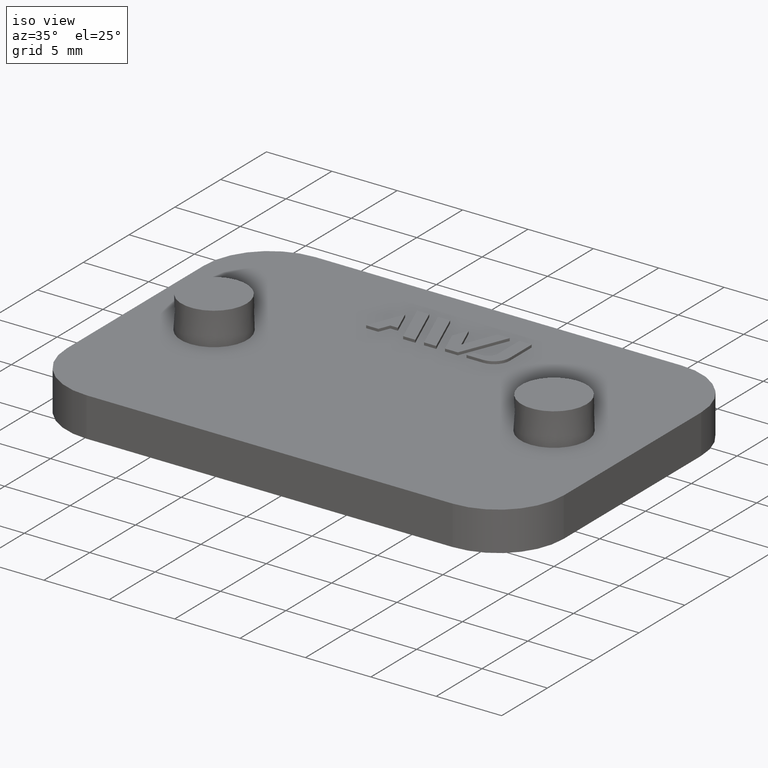
[diagram: clean part render]
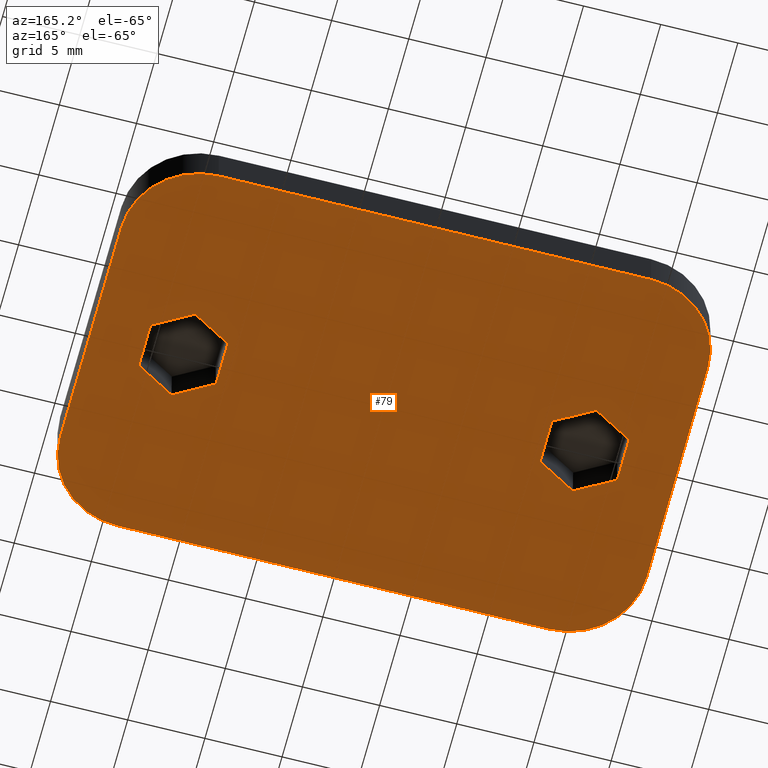
[diagram: tour spotlight — one face highlighted and labeled with its STEP entity id]
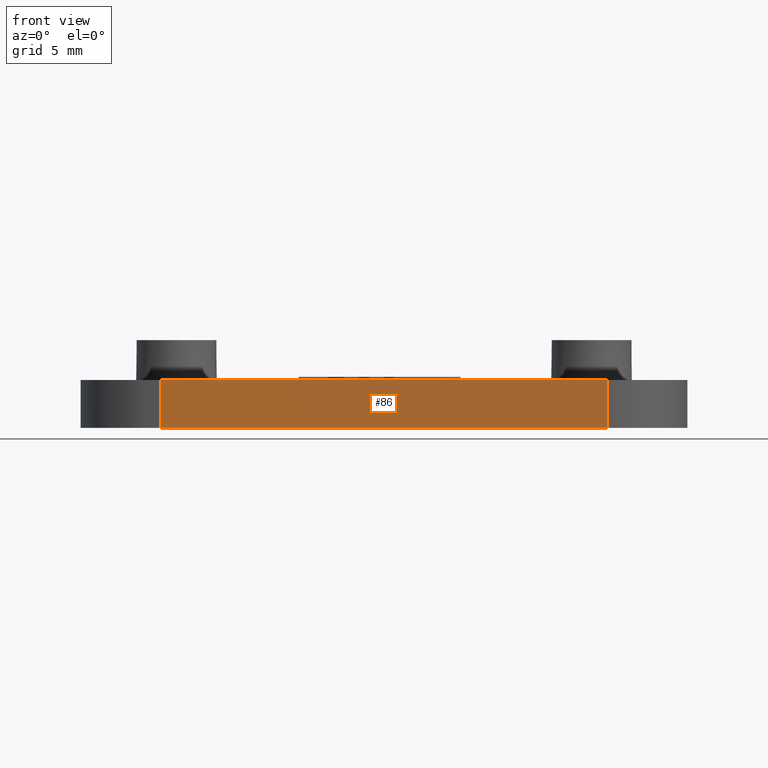
[diagram: tour spotlight — one face highlighted and labeled with its STEP entity id]
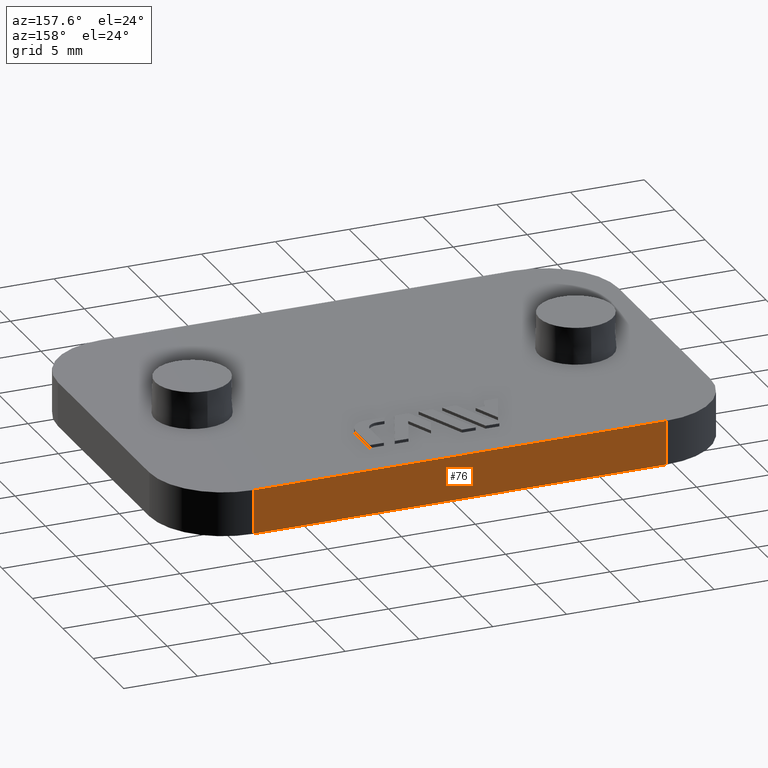
[diagram: tour spotlight — one face highlighted and labeled with its STEP entity id]
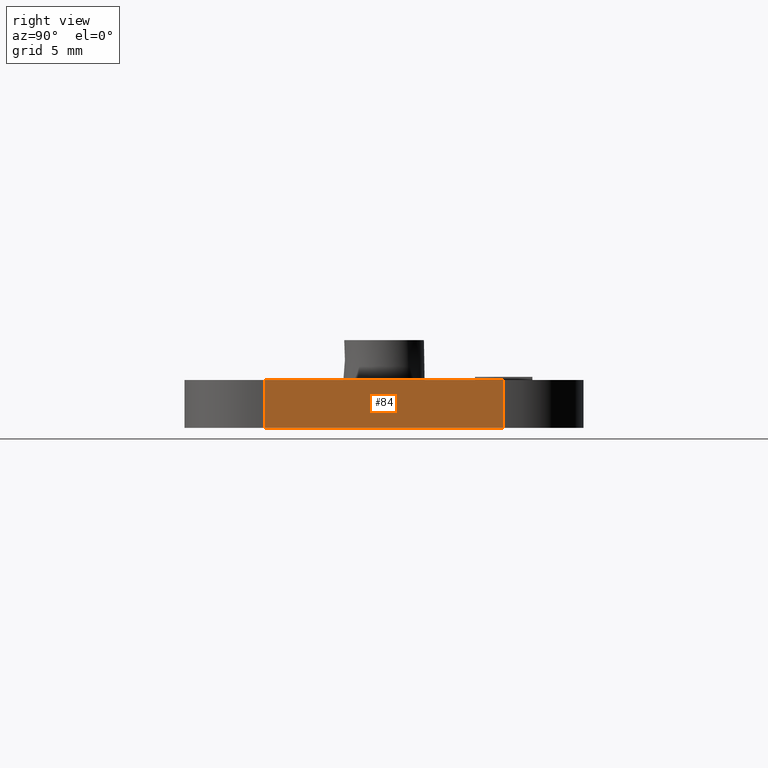
[diagram: tour spotlight — one face highlighted and labeled with its STEP entity id]
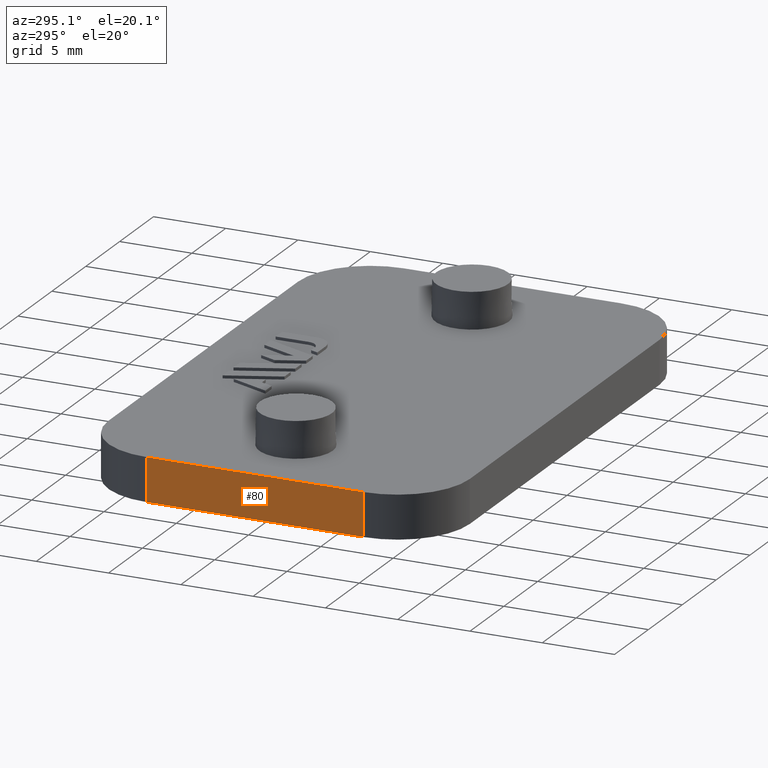
[diagram: tour spotlight — one face highlighted and labeled with its STEP entity id]
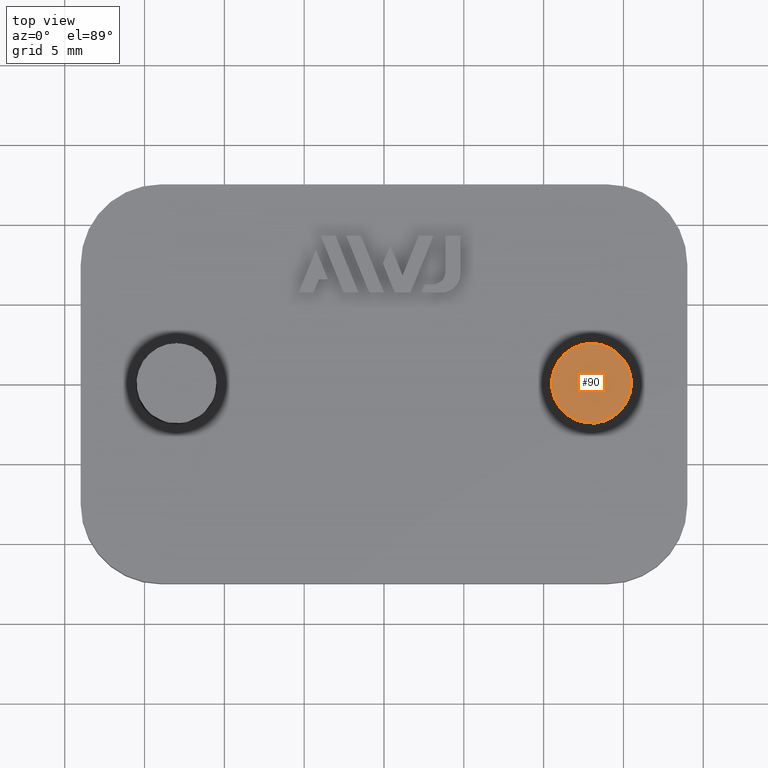
[diagram: tour spotlight — one face highlighted and labeled with its STEP entity id]
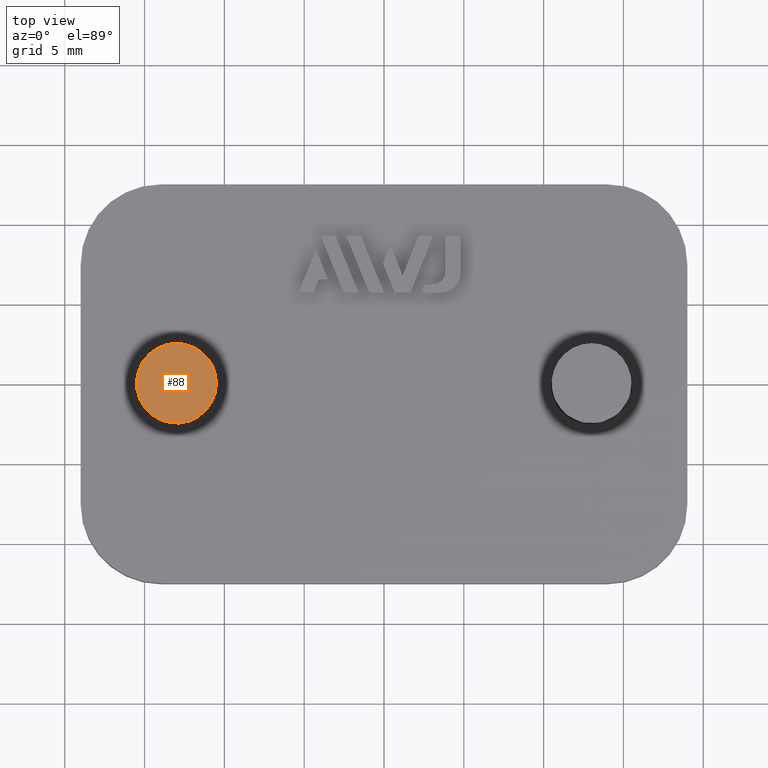
[diagram: tour spotlight — one face highlighted and labeled with its STEP entity id]
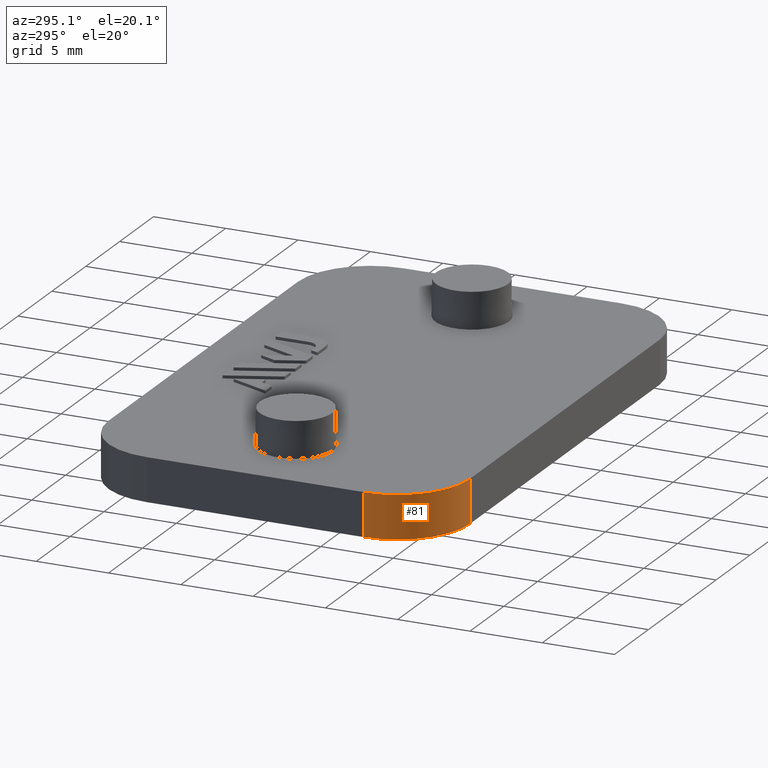
[diagram: tour spotlight — one face highlighted and labeled with its STEP entity id]
A machine part: a face-by-face anatomy tour. The part has 61 B-rep faces; the first image is the clean iso view, then the 8 largest visible faces are spotlighted one at a time (largest first), each with its STEP entity span.

Face 1 — auxiliary view, entity #79. In plain terms, the highlighted planar face has unit normal (0, -0, -1).
Definition (entity closure, byte-faithful):
#79 = ADVANCED_FACE( '', ( #152, #153, #154 ), #155, .T. );
#152 = FACE_BOUND( '', #285, .T. );
#153 = FACE_BOUND( '', #286, .T. );
#154 = FACE_OUTER_BOUND( '', #287, .T. );
#155 = PLANE( '', #288 );
#285 = EDGE_LOOP( '', ( #465, #466, #467, #468, #469, #470 ) );
#286 = EDGE_LOOP( '', ( #471, #472, #473, #474, #475, #476 ) );
#287 = EDGE_LOOP( '', ( #477, #478, #479, #480, #481, #482, #483, #484 ) );
#288 = AXIS2_PLACEMENT_3D( '', #485, #486, #487 );
#465 = ORIENTED_EDGE( '', *, *, #928, .T. );
#466 = ORIENTED_EDGE( '', *, *, #929, .T. );
#467 = ORIENTED_EDGE( '', *, *, #930, .T. );
#468 = ORIENTED_EDGE( '', *, *, #931, .T. );
#469 = ORIENTED_EDGE( '', *, *, #932, .T. );
#470 = ORIENTED_EDGE( '', *, *, #933, .T. );
#471 = ORIENTED_EDGE( '', *, *, #934, .T. );
#472 = ORIENTED_EDGE( '', *, *, #935, .T. );
#473 = ORIENTED_EDGE( '', *, *, #936, .T. );
#474 = ORIENTED_EDGE( '', *, *, #937, .T. );
#475 = ORIENTED_EDGE( '', *, *, #938, .T. );
#476 = ORIENTED_EDGE( '', *, *, #939, .T. );
#477 = ORIENTED_EDGE( '', *, *, #921, .T. );
#478 = ORIENTED_EDGE( '', *, *, #940, .T. );
#479 = ORIENTED_EDGE( '', *, *, #941, .T. );
#480 = ORIENTED_EDGE( '', *, *, #942, .T. );
#481 = ORIENTED_EDGE( '', *, *, #943, .T. );
#482 = ORIENTED_EDGE( '', *, *, #944, .T. );
#483 = ORIENTED_EDGE( '', *, *, #945, .T. );
#484 = ORIENTED_EDGE( '', *, *, #946, .T. );
#485 = CARTESIAN_POINT( '', ( 30.5000000000000, -8.49741356322415E-031, -1.38777878078145E-014 ) );
#486 = DIRECTION( '', ( 0.000000000000000, -6.12303176911189E-017, -1.00000000000000 ) );
#487 = DIRECTION( '', ( 0.000000000000000, 1.00000000000000, -6.12303176911189E-017 ) );
#921 = EDGE_CURVE( '', #1108, #1106, #1109, .T. );
#928 = EDGE_CURVE( '', #1119, #1120, #1121, .F. );
#929 = EDGE_CURVE( '', #1120, #1122, #1123, .F. );
#930 = EDGE_CURVE( '', #1122, #1124, #1125, .F. );
#931 = EDGE_CURVE( '', #1124, #1126, #1127, .F. );
#932 = EDGE_CURVE( '', #1126, #1128, #1129, .F. );
#933 = EDGE_CURVE( '', #1128, #1119, #1130, .F. );
#934 = EDGE_CURVE( '', #1131, #1132, #1133, .F. );
#935 = EDGE_CURVE( '', #1132, #1134, #1135, .F. );
#936 = EDGE_CURVE( '', #1134, #1136, #1137, .F. );
#937 = EDGE_CURVE( '', #1136, #1138, #1139, .F. );
#938 = EDGE_CURVE( '', #1138, #1140, #1141, .F. );
#939 = EDGE_CURVE( '', #1140, #1131, #1142, .F. );
#940 = EDGE_CURVE( '', #1106, #1143, #1144, .T. );
#941 = EDGE_CURVE( '', #1143, #1145, #1146, .T. );
#942 = EDGE_CURVE( '', #1145, #1147, #1148, .T. );
#943 = EDGE_CURVE( '', #1147, #1149, #1150, .T. );
#944 = EDGE_CURVE( '', #1149, #1151, #1152, .T. );
#945 = EDGE_CURVE( '', #1151, #1153, #1154, .T. );
#946 = EDGE_CURVE( '', #1153, #1108, #1155, .T. );
#1106 = VERTEX_POINT( '', #1384 );
#1108 = VERTEX_POINT( '', #1387 );
#1109 = LINE( '', #1388, #1389 );
#1119 = VERTEX_POINT( '', #1405 );
#1120 = VERTEX_POINT( '', #1406 );
#1121 = LINE( '', #1407, #1408 );
#1122 = VERTEX_POINT( '', #1409 );
#1123 = LINE( '', #1410, #1411 );
#1124 = VERTEX_POINT( '', #1412 );
#1125 = LINE( '', #1413, #1414 );
#1126 = VERTEX_POINT( '', #1415 );
#1127 = LINE( '', #1416, #1417 );
#1128 = VERTEX_POINT( '', #1418 );
#1129 = LINE( '', #1419, #1420 );
#1130 = LINE( '', #1421, #1422 );
#1131 = VERTEX_POINT( '', #1423 );
#1132 = VERTEX_POINT( '', #1424 );
#1133 = LINE( '', #1425, #1426 );
#1134 = VERTEX_POINT( '', #1427 );
#1135 = LINE( '', #1428, #1429 );
#1136 = VERTEX_POINT( '', #1430 );
#1137 = LINE( '', #1431, #1432 );
#1138 = VERTEX_POINT( '', #1433 );
#1139 = LINE( '', #1434, #1435 );
#1140 = VERTEX_POINT( '', #1436 );
#1141 = LINE( '', #1437, #1438 );
#1142 = LINE( '', #1439, #1440 );
#1143 = VERTEX_POINT( '', #1441 );
#1144 = CIRCLE( '', #1442, 5.00000000000000 );
#1145 = VERTEX_POINT( '', #1443 );
#1146 = LINE( '', #1444, #1445 );
#1147 = VERTEX_POINT( '', #1446 );
#1148 = CIRCLE( '', #1447, 4.99999999999998 );
#1149 = VERTEX_POINT( '', #1448 );
#1150 = LINE( '', #1449, #1450 );
#1151 = VERTEX_POINT( '', #1451 );
#1152 = CIRCLE( '', #1452, 5.00000000000000 );
#1153 = VERTEX_POINT( '', #1453 );
#1154 = LINE( '', #1454, #1455 );
#1155 = CIRCLE( '', #1456, 5.00000000000000 );
#1384 = CARTESIAN_POINT( '', ( 14.0000000000000, 12.5000000000000, -1.46431667789534E-014 ) );
#1387 = CARTESIAN_POINT( '', ( -14.0000000000000, 12.5000000000000, -1.46431667789534E-014 ) );
#1388 = CARTESIAN_POINT( '', ( -30.5000000000000, 12.5000000000000, -1.46431667789534E-014 ) );
#1389 = VECTOR( '', #1713, 1000.00000000000 );
#1405 = CARTESIAN_POINT( '', ( -10.5000000000000, 1.44337567297406, -1.39661661588183E-014 ) );
#1406 = CARTESIAN_POINT( '', ( -13.0000000000000, 2.88675134594813, -1.40545445098221E-014 ) );
#1407 = CARTESIAN_POINT( '', ( -11.7500000000000, 2.16506350946110, -1.40103553343202E-014 ) );
#1408 = VECTOR( '', #1720, 1000.00000000000 );
#1409 = CARTESIAN_POINT( '', ( -15.5000000000000, 1.44337567297406, -1.39661661588183E-014 ) );
#1410 = CARTESIAN_POINT( '', ( -10.5000000000000, 4.33012701892219, -1.41429228608260E-014 ) );
#1411 = VECTOR( '', #1721, 1000.00000000000 );
#1412 = CARTESIAN_POINT( '', ( -15.5000000000000, -1.44337567297407, -1.37894094568106E-014 ) );
#1413 = CARTESIAN_POINT( '', ( -15.5000000000000, 4.33012701892219, -1.41429228608260E-014 ) );
#1414 = VECTOR( '', #1722, 1000.00000000000 );
#1415 = CARTESIAN_POINT( '', ( -13.0000000000000, -2.88675134594813, -1.37010311058068E-014 ) );
#1416 = CARTESIAN_POINT( '', ( -14.2500000000000, -2.16506350946110, -1.37452202813087E-014 ) );
#1417 = VECTOR( '', #1723, 1000.00000000000 );
#1418 = CARTESIAN_POINT( '', ( -10.5000000000000, -1.44337567297406, -1.37894094568106E-014 ) );
#1419 = CARTESIAN_POINT( '', ( -8.00000000000001, 1.73472347597681E-015, -1.38777878078145E-014 ) );
#1420 = VECTOR( '', #1724, 1000.00000000000 );
#1421 = CARTESIAN_POINT( '', ( -10.5000000000000, 4.33012701892219, -1.41429228608260E-014 ) );
#1422 = VECTOR( '', #1725, 1000.00000000000 );
#1423 = CARTESIAN_POINT( '', ( 10.5000000000000, -1.44337567297406, -1.37894094568106E-014 ) );
#1424 = CARTESIAN_POINT( '', ( 13.0000000000000, -2.88675134594813, -1.37010311058068E-014 ) );
#1425 = CARTESIAN_POINT( '', ( -10.2500000000000, 10.5366424127107, -1.45229497701424E-014 ) );
#1426 = VECTOR( '', #1726, 1000.00000000000 );
#1427 = CARTESIAN_POINT( '', ( 15.5000000000000, -1.44337567297406, -1.37894094568106E-014 ) );
#1428 = CARTESIAN_POINT( '', ( -6.50000000000001, -14.1450815951458, -1.30116799679769E-014 ) );
#1429 = VECTOR( '', #1727, 1000.00000000000 );
#1430 = CARTESIAN_POINT( '', ( 15.5000000000000, 1.44337567297407, -1.39661661588183E-014 ) );
#1431 = CARTESIAN_POINT( '', ( 15.5000000000000, 1.44337567297408, -1.39661661588183E-014 ) );
#1432 = VECTOR( '', #1728, 1000.00000000000 );
#1433 = CARTESIAN_POINT( '', ( 13.0000000000000, 2.88675134594813, -1.40545445098221E-014 ) );
#1434 = CARTESIAN_POINT( '', ( -7.75000000000002, 14.8667694316329, -1.47880848231540E-014 ) );
#1435 = VECTOR( '', #1729, 1000.00000000000 );
#1436 = CARTESIAN_POINT( '', ( 10.5000000000000, 1.44337567297406, -1.39661661588183E-014 ) );
#1437 = CARTESIAN_POINT( '', ( -9.00000000000001, -9.81495457622364, -1.32768150209884E-014 ) );
#1438 = VECTOR( '', #1730, 1000.00000000000 );
#1439 = CARTESIAN_POINT( '', ( 10.5000000000000, 1.44337567297406, -1.39661661588183E-014 ) );
#1440 = VECTOR( '', #1731, 1000.00000000000 );
#1441 = CARTESIAN_POINT( '', ( 19.0000000000000, 7.50000000000001, -1.43370151904978E-014 ) );
#1442 = AXIS2_PLACEMENT_3D( '', #1732, #1733, #1734 );
#1443 = CARTESIAN_POINT( '', ( 19.0000000000000, -7.49999999999999, -1.34185604251311E-014 ) );
#1444 = CARTESIAN_POINT( '', ( 19.0000000000000, -1.18932088166396E-030, -1.38777878078145E-014 ) );
#1445 = VECTOR( '', #1735, 1000.00000000000 );
#1446 = CARTESIAN_POINT( '', ( 14.0000000000000, -12.5000000000000, -1.31124088366755E-014 ) );
#1447 = AXIS2_PLACEMENT_3D( '', #1736, #1737, #1738 );
#1448 = CARTESIAN_POINT( '', ( -14.0000000000000, -12.5000000000000, -1.31124088366755E-014 ) );
#1449 = CARTESIAN_POINT( '', ( 30.5000000000000, -12.5000000000000, -1.31124088366755E-014 ) );
#1450 = VECTOR( '', #1739, 1000.00000000000 );
#1451 = CARTESIAN_POINT( '', ( -19.0000000000000, -7.50000000000002, -1.34185604251311E-014 ) );
#1452 = AXIS2_PLACEMENT_3D( '', #1740, #1741, #1742 );
#1453 = CARTESIAN_POINT( '', ( -19.0000000000000, 7.50000000000000, -1.43370151904978E-014 ) );
#1454 = CARTESIAN_POINT( '', ( -19.0000000000000, -3.29027978184992E-030, -1.38777878078145E-014 ) );
#1455 = VECTOR( '', #1743, 1000.00000000000 );
#1456 = AXIS2_PLACEMENT_3D( '', #1744, #1745, #1746 );
#1713 = DIRECTION( '', ( 1.00000000000000, 0.000000000000000, 0.000000000000000 ) );
#1720 = DIRECTION( '', ( 0.866025403784439, -0.500000000000000, 3.06151588455594E-017 ) );
#1721 = DIRECTION( '', ( 0.866025403784439, 0.500000000000000, -3.06151588455594E-017 ) );
#1722 = DIRECTION( '', ( 1.11022302462516E-016, 1.00000000000000, -6.12303176911189E-017 ) );
#1723 = DIRECTION( '', ( -0.866025403784439, 0.500000000000000, -3.06151588455594E-017 ) );
#1724 = DIRECTION( '', ( -0.866025403784439, -0.500000000000000, 3.06151588455594E-017 ) );
#1725 = DIRECTION( '', ( 4.99600361081321E-016, -1.00000000000000, 6.12303176911189E-017 ) );
#1726 = DIRECTION( '', ( -0.866025403784439, 0.500000000000000, -3.06151588455594E-017 ) );
#1727 = DIRECTION( '', ( -0.866025403784439, -0.500000000000000, 3.06151588455594E-017 ) );
#1728 = DIRECTION( '', ( 4.99600361081321E-016, -1.00000000000000, 6.12303176911189E-017 ) );
#1729 = DIRECTION( '', ( 0.866025403784439, -0.500000000000000, 3.06151588455594E-017 ) );
#1730 = DIRECTION( '', ( 0.866025403784439, 0.500000000000000, -3.06151588455594E-017 ) );
#1731 = DIRECTION( '', ( 1.11022302462516E-016, 1.00000000000000, -6.12303176911189E-017 ) );
#1732 = CARTESIAN_POINT( '', ( 14.0000000000000, 7.50000000000000, -1.43370151904978E-014 ) );
#1733 = DIRECTION( '', ( 0.000000000000000, -6.12303176911189E-017, -1.00000000000000 ) );
#1734 = DIRECTION( '', ( 0.000000000000000, 1.00000000000000, -6.12303176911189E-017 ) );
#1735 = DIRECTION( '', ( 2.95286543775260E-032, -1.00000000000000, 6.12303176911189E-017 ) );
#1736 = CARTESIAN_POINT( '', ( 14.0000000000000, -7.50000000000001, -1.34185604251311E-014 ) );
#1737 = DIRECTION( '', ( 0.000000000000000, -6.12303176911189E-017, -1.00000000000000 ) );
#1738 = DIRECTION( '', ( 0.000000000000000, 1.00000000000000, -6.12303176911189E-017 ) );
#1739 = DIRECTION( '', ( -1.00000000000000, 0.000000000000000, 0.000000000000000 ) );
#1740 = CARTESIAN_POINT( '', ( -14.0000000000000, -7.50000000000002, -1.34185604251311E-014 ) );
#1741 = DIRECTION( '', ( 0.000000000000000, -6.12303176911189E-017, -1.00000000000000 ) );
#1742 = DIRECTION( '', ( 0.000000000000000, 1.00000000000000, -6.12303176911189E-017 ) );
#1743 = DIRECTION( '', ( -4.93038065763132E-032, 1.00000000000000, -6.12303176911189E-017 ) );
#1744 = CARTESIAN_POINT( '', ( -14.0000000000000, 7.50000000000000, -1.43370151904978E-014 ) );
#1745 = DIRECTION( '', ( 0.000000000000000, -6.12303176911189E-017, -1.00000000000000 ) );
#1746 = DIRECTION( '', ( 0.000000000000000, 1.00000000000000, -6.12303176911189E-017 ) );

Face 2 — front view, entity #86. In plain terms, the highlighted planar face has unit normal (0, 1, -0).
Definition (entity closure, byte-faithful):
#86 = ADVANCED_FACE( '', ( #168 ), #169, .F. );
#168 = FACE_OUTER_BOUND( '', #301, .T. );
#169 = PLANE( '', #302 );
#301 = EDGE_LOOP( '', ( #530, #531, #532, #533 ) );
#302 = AXIS2_PLACEMENT_3D( '', #534, #535, #536 );
#530 = ORIENTED_EDGE( '', *, *, #952, .F. );
#531 = ORIENTED_EDGE( '', *, *, #898, .T. );
#532 = ORIENTED_EDGE( '', *, *, #949, .T. );
#533 = ORIENTED_EDGE( '', *, *, #943, .F. );
#534 = CARTESIAN_POINT( '', ( 30.5000000000000, -12.5000000000000, -1.31124088366755E-014 ) );
#535 = DIRECTION( '', ( 0.000000000000000, 1.00000000000000, -6.12303176911189E-017 ) );
#536 = DIRECTION( '', ( 1.00000000000000, 0.000000000000000, 0.000000000000000 ) );
#898 = EDGE_CURVE( '', #1063, #1061, #1064, .T. );
#943 = EDGE_CURVE( '', #1147, #1149, #1150, .T. );
#949 = EDGE_CURVE( '', #1061, #1149, #1158, .T. );
#952 = EDGE_CURVE( '', #1063, #1147, #1161, .T. );
#1061 = VERTEX_POINT( '', #1322 );
#1063 = VERTEX_POINT( '', #1324 );
#1064 = LINE( '', #1325, #1326 );
#1147 = VERTEX_POINT( '', #1446 );
#1149 = VERTEX_POINT( '', #1448 );
#1150 = LINE( '', #1449, #1450 );
#1158 = LINE( '', #1461, #1462 );
#1161 = LINE( '', #1467, #1468 );
#1322 = CARTESIAN_POINT( '', ( -14.0000000000000, -12.5000000000000, 2.99999999999999 ) );
#1324 = CARTESIAN_POINT( '', ( 14.0000000000000, -12.5000000000000, 2.99999999999999 ) );
#1325 = CARTESIAN_POINT( '', ( 30.5000000000000, -12.5000000000000, 2.99999999999999 ) );
#1326 = VECTOR( '', #1680, 1000.00000000000 );
#1446 = CARTESIAN_POINT( '', ( 14.0000000000000, -12.5000000000000, -1.31124088366755E-014 ) );
#1448 = CARTESIAN_POINT( '', ( -14.0000000000000, -12.5000000000000, -1.31124088366755E-014 ) );
#1449 = CARTESIAN_POINT( '', ( 30.5000000000000, -12.5000000000000, -1.31124088366755E-014 ) );
#1450 = VECTOR( '', #1739, 1000.00000000000 );
#1461 = CARTESIAN_POINT( '', ( -14.0000000000000, -12.5000000000000, 74.2720256703614 ) );
#1462 = VECTOR( '', #1749, 1000.00000000000 );
#1467 = CARTESIAN_POINT( '', ( 14.0000000000000, -12.5000000000000, 61.8132557149797 ) );
#1468 = VECTOR( '', #1752, 1000.00000000000 );
#1680 = DIRECTION( '', ( -1.00000000000000, 0.000000000000000, 0.000000000000000 ) );
#1739 = DIRECTION( '', ( -1.00000000000000, 0.000000000000000, 0.000000000000000 ) );
#1749 = DIRECTION( '', ( 1.60751816480226E-016, -1.81794180051289E-016, -1.00000000000000 ) );
#1752 = DIRECTION( '', ( 1.60751816480226E-016, -1.81794180051289E-016, -1.00000000000000 ) );

Face 3 — auxiliary view, entity #76. In plain terms, the highlighted planar face has unit normal (0, -1, 0).
Definition (entity closure, byte-faithful):
#76 = ADVANCED_FACE( '', ( #146 ), #147, .F. );
#146 = FACE_OUTER_BOUND( '', #279, .T. );
#147 = PLANE( '', #280 );
#279 = EDGE_LOOP( '', ( #444, #445, #446, #447 ) );
#280 = AXIS2_PLACEMENT_3D( '', #448, #449, #450 );
#444 = ORIENTED_EDGE( '', *, *, #894, .T. );
#445 = ORIENTED_EDGE( '', *, *, #920, .T. );
#446 = ORIENTED_EDGE( '', *, *, #921, .F. );
#447 = ORIENTED_EDGE( '', *, *, #922, .F. );
#448 = CARTESIAN_POINT( '', ( -30.5000000000000, 12.5000000000000, -1.46431667789534E-014 ) );
#449 = DIRECTION( '', ( 0.000000000000000, -1.00000000000000, 6.12303176911189E-017 ) );
#450 = DIRECTION( '', ( -1.00000000000000, 0.000000000000000, 0.000000000000000 ) );
#894 = EDGE_CURVE( '', #1055, #1052, #1056, .T. );
#920 = EDGE_CURVE( '', #1052, #1106, #1107, .T. );
#921 = EDGE_CURVE( '', #1108, #1106, #1109, .T. );
#922 = EDGE_CURVE( '', #1055, #1108, #1110, .T. );
#1052 = VERTEX_POINT( '', #1311 );
#1055 = VERTEX_POINT( '', #1314 );
#1056 = LINE( '', #1315, #1316 );
#1106 = VERTEX_POINT( '', #1384 );
#1107 = LINE( '', #1385, #1386 );
#1108 = VERTEX_POINT( '', #1387 );
#1109 = LINE( '', #1388, #1389 );
#1110 = LINE( '', #1390, #1391 );
#1311 = CARTESIAN_POINT( '', ( 14.0000000000000, 12.5000000000000, 2.99999999999999 ) );
#1314 = CARTESIAN_POINT( '', ( -14.0000000000000, 12.5000000000000, 2.99999999999999 ) );
#1315 = CARTESIAN_POINT( '', ( -30.5000000000000, 12.5000000000000, 2.99999999999999 ) );
#1316 = VECTOR( '', #1672, 1000.00000000000 );
#1384 = CARTESIAN_POINT( '', ( 14.0000000000000, 12.5000000000000, -1.46431667789534E-014 ) );
#1385 = CARTESIAN_POINT( '', ( 14.0000000000000, 12.5000000000000, 61.8132557149797 ) );
#1386 = VECTOR( '', #1712, 1000.00000000000 );
#1387 = CARTESIAN_POINT( '', ( -14.0000000000000, 12.5000000000000, -1.46431667789534E-014 ) );
#1388 = CARTESIAN_POINT( '', ( -30.5000000000000, 12.5000000000000, -1.46431667789534E-014 ) );
#1389 = VECTOR( '', #1713, 1000.00000000000 );
#1390 = CARTESIAN_POINT( '', ( -14.0000000000000, 12.5000000000000, 74.2720256703614 ) );
#1391 = VECTOR( '', #1714, 1000.00000000000 );
#1672 = DIRECTION( '', ( 1.00000000000000, 0.000000000000000, 0.000000000000000 ) );
#1712 = DIRECTION( '', ( 1.60751816480226E-016, -1.81794180051289E-016, -1.00000000000000 ) );
#1713 = DIRECTION( '', ( 1.00000000000000, 0.000000000000000, 0.000000000000000 ) );
#1714 = DIRECTION( '', ( 1.60751816480226E-016, -1.81794180051289E-016, -1.00000000000000 ) );

Face 4 — right view, entity #84. In plain terms, the highlighted planar face has unit normal (1, 0, 0).
Definition (entity closure, byte-faithful):
#84 = ADVANCED_FACE( '', ( #164 ), #165, .T. );
#164 = FACE_OUTER_BOUND( '', #297, .T. );
#165 = PLANE( '', #298 );
#297 = EDGE_LOOP( '', ( #516, #517, #518, #519 ) );
#298 = AXIS2_PLACEMENT_3D( '', #520, #521, #522 );
#516 = ORIENTED_EDGE( '', *, *, #950, .F. );
#517 = ORIENTED_EDGE( '', *, *, #900, .T. );
#518 = ORIENTED_EDGE( '', *, *, #951, .T. );
#519 = ORIENTED_EDGE( '', *, *, #941, .F. );
#520 = CARTESIAN_POINT( '', ( 19.0000000000000, 7.50000000000001, 61.8132557149797 ) );
#521 = DIRECTION( '', ( 1.00000000000000, 3.93715391700347E-032, 1.60751816480226E-016 ) );
#522 = DIRECTION( '', ( 1.01477945012568E-032, -1.00000000000000, 1.81794180051289E-016 ) );
#900 = EDGE_CURVE( '', #1053, #1065, #1067, .T. );
#941 = EDGE_CURVE( '', #1143, #1145, #1146, .T. );
#950 = EDGE_CURVE( '', #1053, #1143, #1159, .T. );
#951 = EDGE_CURVE( '', #1065, #1145, #1160, .T. );
#1053 = VERTEX_POINT( '', #1312 );
#1065 = VERTEX_POINT( '', #1327 );
#1067 = LINE( '', #1329, #1330 );
#1143 = VERTEX_POINT( '', #1441 );
#1145 = VERTEX_POINT( '', #1443 );
#1146 = LINE( '', #1444, #1445 );
#1159 = LINE( '', #1463, #1464 );
#1160 = LINE( '', #1465, #1466 );
#1312 = CARTESIAN_POINT( '', ( 19.0000000000000, 7.50000000000001, 2.99999999999999 ) );
#1327 = CARTESIAN_POINT( '', ( 19.0000000000000, -7.49999999999999, 2.99999999999999 ) );
#1329 = CARTESIAN_POINT( '', ( 19.0000000000000, 1.83690953073356E-016, 2.99999999999999 ) );
#1330 = VECTOR( '', #1684, 1000.00000000000 );
#1441 = CARTESIAN_POINT( '', ( 19.0000000000000, 7.50000000000001, -1.43370151904978E-014 ) );
#1443 = CARTESIAN_POINT( '', ( 19.0000000000000, -7.49999999999999, -1.34185604251311E-014 ) );
#1444 = CARTESIAN_POINT( '', ( 19.0000000000000, -1.18932088166396E-030, -1.38777878078145E-014 ) );
#1445 = VECTOR( '', #1735, 1000.00000000000 );
#1463 = CARTESIAN_POINT( '', ( 19.0000000000000, 7.50000000000001, 61.8132557149797 ) );
#1464 = VECTOR( '', #1750, 1000.00000000000 );
#1465 = CARTESIAN_POINT( '', ( 19.0000000000000, -7.49999999999998, 61.8132557149797 ) );
#1466 = VECTOR( '', #1751, 1000.00000000000 );
#1684 = DIRECTION( '', ( 2.95286543775260E-032, -1.00000000000000, 6.12303176911189E-017 ) );
#1735 = DIRECTION( '', ( 2.95286543775260E-032, -1.00000000000000, 6.12303176911189E-017 ) );
#1750 = DIRECTION( '', ( 1.60751816480226E-016, -1.81794180051289E-016, -1.00000000000000 ) );
#1751 = DIRECTION( '', ( 1.60751816480226E-016, -1.81794180051289E-016, -1.00000000000000 ) );

Face 5 — auxiliary view, entity #80. In plain terms, the highlighted planar face has unit normal (-1, -0, -0).
Definition (entity closure, byte-faithful):
#80 = ADVANCED_FACE( '', ( #156 ), #157, .T. );
#156 = FACE_OUTER_BOUND( '', #289, .T. );
#157 = PLANE( '', #290 );
#289 = EDGE_LOOP( '', ( #488, #489, #490, #491 ) );
#290 = AXIS2_PLACEMENT_3D( '', #492, #493, #494 );
#488 = ORIENTED_EDGE( '', *, *, #947, .F. );
#489 = ORIENTED_EDGE( '', *, *, #896, .T. );
#490 = ORIENTED_EDGE( '', *, *, #948, .T. );
#491 = ORIENTED_EDGE( '', *, *, #945, .F. );
#492 = CARTESIAN_POINT( '', ( -19.0000000000000, -7.50000000000000, 74.2720256703614 ) );
#493 = DIRECTION( '', ( -1.00000000000000, -5.91466913688219E-032, -1.60751816480226E-016 ) );
#494 = DIRECTION( '', ( -2.99229467000440E-032, 1.00000000000000, -1.81794180051289E-016 ) );
#896 = EDGE_CURVE( '', #1059, #1057, #1060, .T. );
#945 = EDGE_CURVE( '', #1151, #1153, #1154, .T. );
#947 = EDGE_CURVE( '', #1059, #1151, #1156, .T. );
#948 = EDGE_CURVE( '', #1057, #1153, #1157, .T. );
#1057 = VERTEX_POINT( '', #1317 );
#1059 = VERTEX_POINT( '', #1319 );
#1060 = LINE( '', #1320, #1321 );
#1151 = VERTEX_POINT( '', #1451 );
#1153 = VERTEX_POINT( '', #1453 );
#1154 = LINE( '', #1454, #1455 );
#1156 = LINE( '', #1457, #1458 );
#1157 = LINE( '', #1459, #1460 );
#1317 = CARTESIAN_POINT( '', ( -19.0000000000000, 7.50000000000000, 2.99999999999999 ) );
#1319 = CARTESIAN_POINT( '', ( -19.0000000000000, -7.50000000000002, 2.99999999999999 ) );
#1320 = CARTESIAN_POINT( '', ( -19.0000000000000, 1.83690953073353E-016, 2.99999999999999 ) );
#1321 = VECTOR( '', #1676, 1000.00000000000 );
#1451 = CARTESIAN_POINT( '', ( -19.0000000000000, -7.50000000000002, -1.34185604251311E-014 ) );
#1453 = CARTESIAN_POINT( '', ( -19.0000000000000, 7.50000000000000, -1.43370151904978E-014 ) );
#1454 = CARTESIAN_POINT( '', ( -19.0000000000000, -3.29027978184992E-030, -1.38777878078145E-014 ) );
#1455 = VECTOR( '', #1743, 1000.00000000000 );
#1457 = CARTESIAN_POINT( '', ( -19.0000000000000, -7.50000000000000, 74.2720256703614 ) );
#1458 = VECTOR( '', #1747, 1000.00000000000 );
#1459 = CARTESIAN_POINT( '', ( -19.0000000000000, 7.50000000000001, 74.2720256703614 ) );
#1460 = VECTOR( '', #1748, 1000.00000000000 );
#1676 = DIRECTION( '', ( -4.93038065763132E-032, 1.00000000000000, -6.12303176911189E-017 ) );
#1743 = DIRECTION( '', ( -4.93038065763132E-032, 1.00000000000000, -6.12303176911189E-017 ) );
#1747 = DIRECTION( '', ( 1.60751816480226E-016, -1.81794180051289E-016, -1.00000000000000 ) );
#1748 = DIRECTION( '', ( 1.60751816480226E-016, -1.81794180051289E-016, -1.00000000000000 ) );

Face 6 — top view, entity #90. In plain terms, the highlighted planar face has unit normal (0, -0, -1).
Definition (entity closure, byte-faithful):
#90 = ADVANCED_FACE( '', ( #178 ), #179, .F. );
#178 = FACE_OUTER_BOUND( '', #311, .T. );
#179 = PLANE( '', #312 );
#311 = EDGE_LOOP( '', ( #551 ) );
#312 = AXIS2_PLACEMENT_3D( '', #552, #553, #554 );
#551 = ORIENTED_EDGE( '', *, *, #954, .F. );
#552 = CARTESIAN_POINT( '', ( 13.0000000000000, 2.72201152676926E-015, 5.49999999999999 ) );
#553 = DIRECTION( '', ( 0.000000000000000, -6.12303176911189E-017, -1.00000000000000 ) );
#554 = DIRECTION( '', ( 1.00000000000000, 6.12303176911189E-017, -3.74915180455534E-033 ) );
#954 = EDGE_CURVE( '', #1164, #1164, #1165, .T. );
#1164 = VERTEX_POINT( '', #1471 );
#1165 = CIRCLE( '', #1472, 2.50000000000000 );
#1471 = CARTESIAN_POINT( '', ( 15.5000000000000, 2.87508732099706E-015, 5.49999999999999 ) );
#1472 = AXIS2_PLACEMENT_3D( '', #1756, #1757, #1758 );
#1756 = CARTESIAN_POINT( '', ( 13.0000000000000, 2.72201152676926E-015, 5.49999999999999 ) );
#1757 = DIRECTION( '', ( 4.37905770101505E-049, -6.12303176911189E-017, -1.00000000000000 ) );
#1758 = DIRECTION( '', ( 1.00000000000000, 6.12303176911188E-017, -3.74915180455534E-033 ) );

Face 7 — top view, entity #88. In plain terms, the highlighted planar face has unit normal (0, -0, -1).
Definition (entity closure, byte-faithful):
#88 = ADVANCED_FACE( '', ( #173 ), #174, .F. );
#173 = FACE_OUTER_BOUND( '', #306, .T. );
#174 = PLANE( '', #307 );
#306 = EDGE_LOOP( '', ( #542 ) );
#307 = AXIS2_PLACEMENT_3D( '', #543, #544, #545 );
#542 = ORIENTED_EDGE( '', *, *, #953, .F. );
#543 = CARTESIAN_POINT( '', ( -13.0000000000000, -5.30594990687250E-016, 5.49999999999999 ) );
#544 = DIRECTION( '', ( 0.000000000000000, -6.12303176911189E-017, -1.00000000000000 ) );
#545 = DIRECTION( '', ( 1.00000000000000, 6.12303176911189E-017, -3.74915180455534E-033 ) );
#953 = EDGE_CURVE( '', #1162, #1162, #1163, .T. );
#1162 = VERTEX_POINT( '', #1469 );
#1163 = CIRCLE( '', #1470, 2.50000000000000 );
#1469 = CARTESIAN_POINT( '', ( -10.5000000000000, -3.77519196459453E-016, 5.49999999999999 ) );
#1470 = AXIS2_PLACEMENT_3D( '', #1753, #1754, #1755 );
#1753 = CARTESIAN_POINT( '', ( -13.0000000000000, -5.30594990687250E-016, 5.49999999999999 ) );
#1754 = DIRECTION( '', ( -4.37905770101505E-049, -6.12303176911189E-017, -1.00000000000000 ) );
#1755 = DIRECTION( '', ( 1.00000000000000, 6.12303176911189E-017, -3.74915180455534E-033 ) );

Face 8 — auxiliary view, entity #81. In plain terms, the highlighted cylindrical surface (partial cylindrical patch) has radius 5 mm, axis along (-0, 0, 1).
Definition (entity closure, byte-faithful):
#81 = ADVANCED_FACE( '', ( #158 ), #159, .T. );
#158 = FACE_OUTER_BOUND( '', #291, .T. );
#159 = CYLINDRICAL_SURFACE( '', #292, 5.00000000000000 );
#291 = EDGE_LOOP( '', ( #495, #496, #497, #498 ) );
#292 = AXIS2_PLACEMENT_3D( '', #499, #500, #501 );
#495 = ORIENTED_EDGE( '', *, *, #949, .F. );
#496 = ORIENTED_EDGE( '', *, *, #897, .T. );
#497 = ORIENTED_EDGE( '', *, *, #947, .T. );
#498 = ORIENTED_EDGE( '', *, *, #944, .F. );
#499 = CARTESIAN_POINT( '', ( -14.0000000000000, -7.50000000000000, 74.2720256703614 ) );
#500 = DIRECTION( '', ( -1.60751816480226E-016, 1.81794180051289E-016, 1.00000000000000 ) );
#501 = DIRECTION( '', ( -1.00000000000000, 2.31296463463574E-016, -1.60751816480226E-016 ) );
#897 = EDGE_CURVE( '', #1061, #1059, #1062, .T. );
#944 = EDGE_CURVE( '', #1149, #1151, #1152, .T. );
#947 = EDGE_CURVE( '', #1059, #1151, #1156, .T. );
#949 = EDGE_CURVE( '', #1061, #1149, #1158, .T. );
#1059 = VERTEX_POINT( '', #1319 );
#1061 = VERTEX_POINT( '', #1322 );
#1062 = CIRCLE( '', #1323, 5.00000000000000 );
#1149 = VERTEX_POINT( '', #1448 );
#1151 = VERTEX_POINT( '', #1451 );
#1152 = CIRCLE( '', #1452, 5.00000000000000 );
#1156 = LINE( '', #1457, #1458 );
#1158 = LINE( '', #1461, #1462 );
#1319 = CARTESIAN_POINT( '', ( -19.0000000000000, -7.50000000000002, 2.99999999999999 ) );
#1322 = CARTESIAN_POINT( '', ( -14.0000000000000, -12.5000000000000, 2.99999999999999 ) );
#1323 = AXIS2_PLACEMENT_3D( '', #1677, #1678, #1679 );
#1448 = CARTESIAN_POINT( '', ( -14.0000000000000, -12.5000000000000, -1.31124088366755E-014 ) );
#1451 = CARTESIAN_POINT( '', ( -19.0000000000000, -7.50000000000002, -1.34185604251311E-014 ) );
#1452 = AXIS2_PLACEMENT_3D( '', #1740, #1741, #1742 );
#1457 = CARTESIAN_POINT( '', ( -19.0000000000000, -7.50000000000000, 74.2720256703614 ) );
#1458 = VECTOR( '', #1747, 1000.00000000000 );
#1461 = CARTESIAN_POINT( '', ( -14.0000000000000, -12.5000000000000, 74.2720256703614 ) );
#1462 = VECTOR( '', #1749, 1000.00000000000 );
#1677 = CARTESIAN_POINT( '', ( -14.0000000000000, -7.50000000000002, 2.99999999999999 ) );
#1678 = DIRECTION( '', ( 0.000000000000000, -6.12303176911189E-017, -1.00000000000000 ) );
#1679 = DIRECTION( '', ( 0.000000000000000, 1.00000000000000, -6.12303176911189E-017 ) );
#1740 = CARTESIAN_POINT( '', ( -14.0000000000000, -7.50000000000002, -1.34185604251311E-014 ) );
#1741 = DIRECTION( '', ( 0.000000000000000, -6.12303176911189E-017, -1.00000000000000 ) );
#1742 = DIRECTION( '', ( 0.000000000000000, 1.00000000000000, -6.12303176911189E-017 ) );
#1747 = DIRECTION( '', ( 1.60751816480226E-016, -1.81794180051289E-016, -1.00000000000000 ) );
#1749 = DIRECTION( '', ( 1.60751816480226E-016, -1.81794180051289E-016, -1.00000000000000 ) );